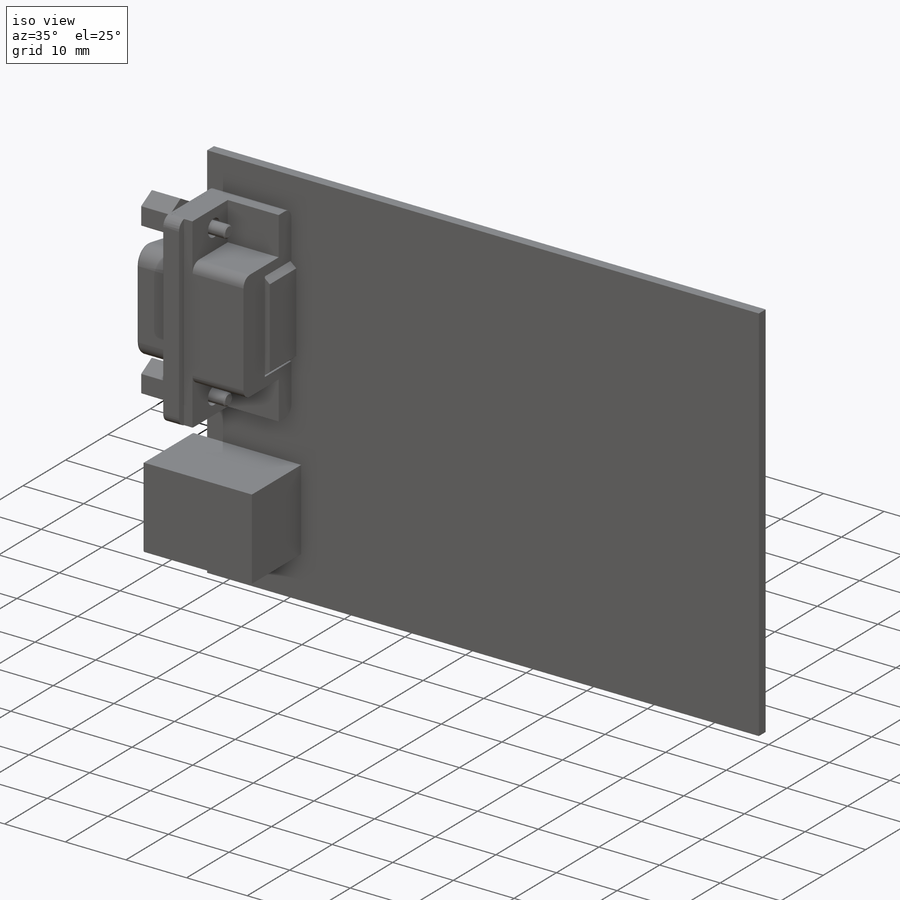
[diagram: iso view]
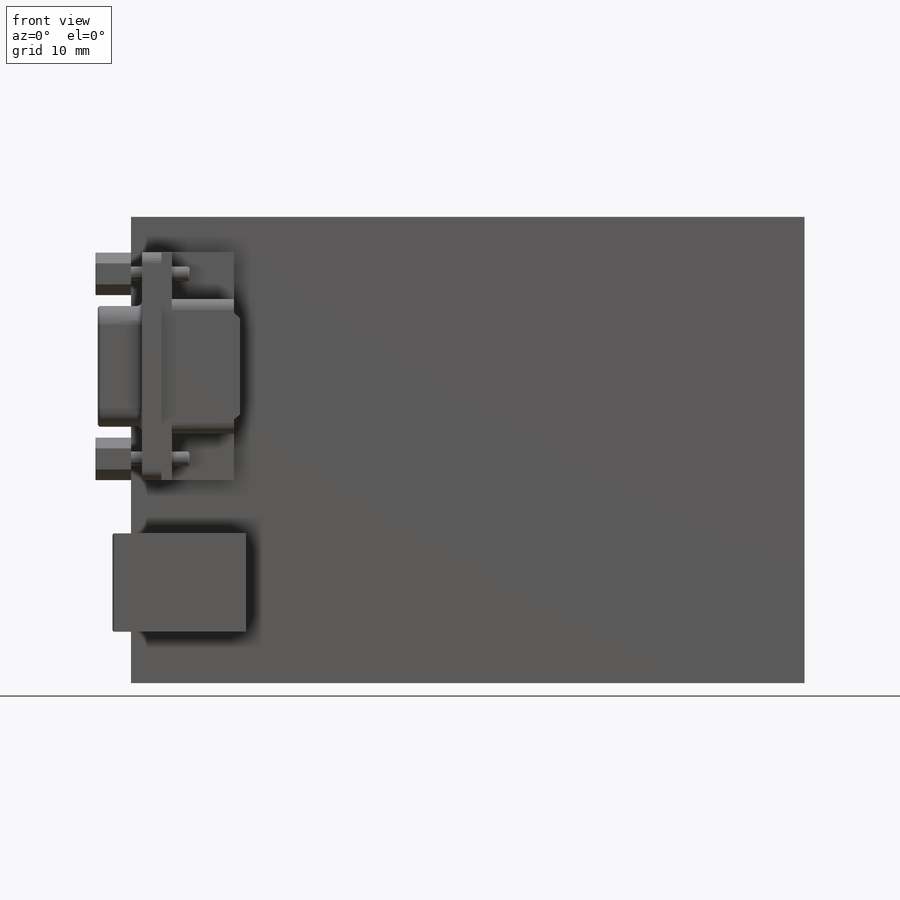
[diagram: front view]
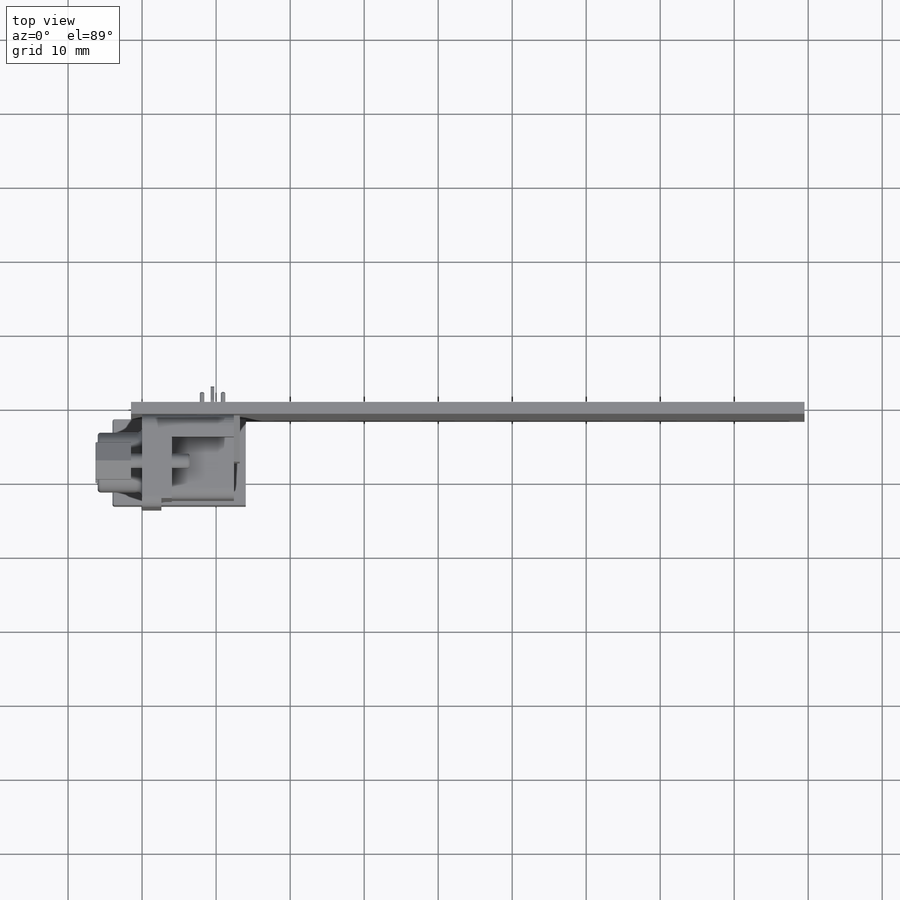
[diagram: top view]
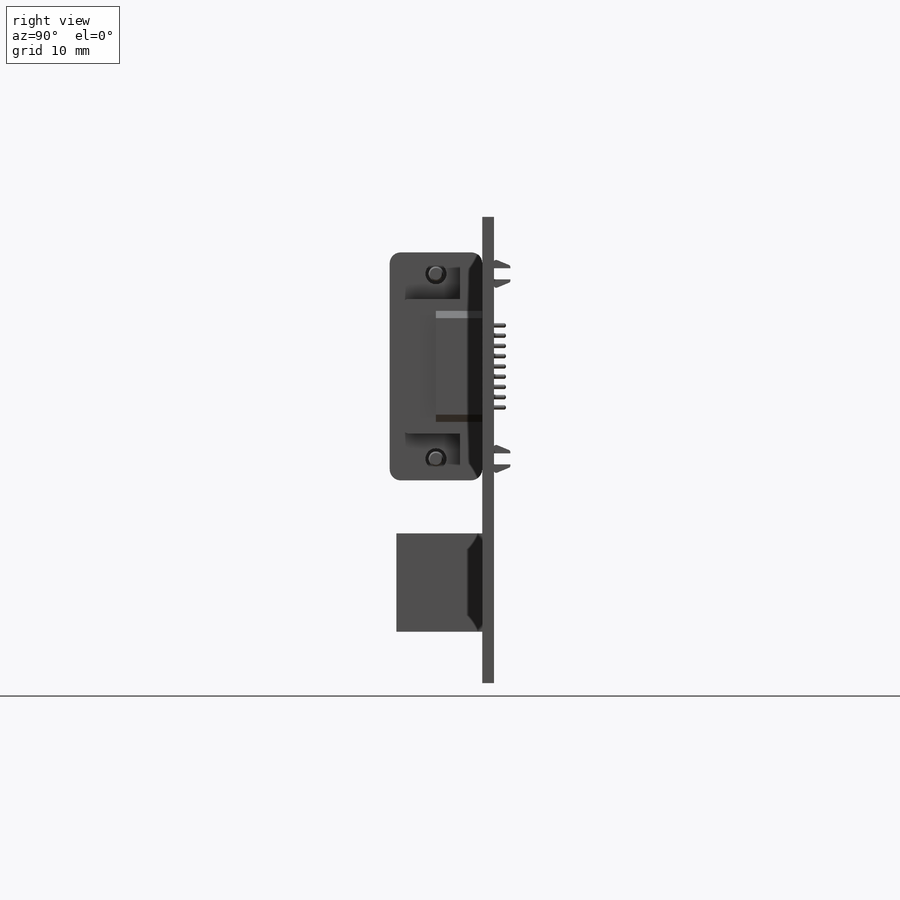
[diagram: right view]
SOLIDWORKS PART (.sldprt)
format: sldprt  version: not decoded by parser v0  size: 728,576 bytes
history: native  units: mm
features: plane x5, sketch x3, extrude x2, material x1, cut_extrude x1, fillet x1 + 2 further entries (+8 scaffold rows collapsed)
feature tree (23):
  scaffold x8  (default folders/planes/origin — collapsed)
  material  "Material <not specified>"
  plane  "Plan de face"
  plane  "Plan de dessus"
  plane  "Plan de droite"
  "Screw_Dsub9-1-solid1"
  "Screw_Dsub9-2-solid1"
  plane  "Plane1"
  sketch  "Sketch1"  dims[D1=20.2mm D2=63.0mm D3=91.0mm D4=1.5mm]
  extrude  "PCB"  Depth=1.6mm
  sketch  "Sketch2"  dims[D1=13.3mm D2=18.0mm D3=29.21mm D4=2.5mm]
  extrude  "Boss-Extrude2"  Depth=11.6mm
  sketch  "Sketch3"  dims[D1=6.8mm D2=9.8mm D3=5.8mm D4=3.0mm D5=6.8mm D6=0.5mm]
  cut_extrude  "Cut-Extrude1"  Depth=12mm
  fillet  "Fillet1"  Radius=0.3mm
  plane  "Plane2"
decode coverage: 7 of 7 modeling features carry decoded parameters; 2 rows unclassified (native names shown)
note: suppression state not decoded; provenance and decode notes live in map.json
